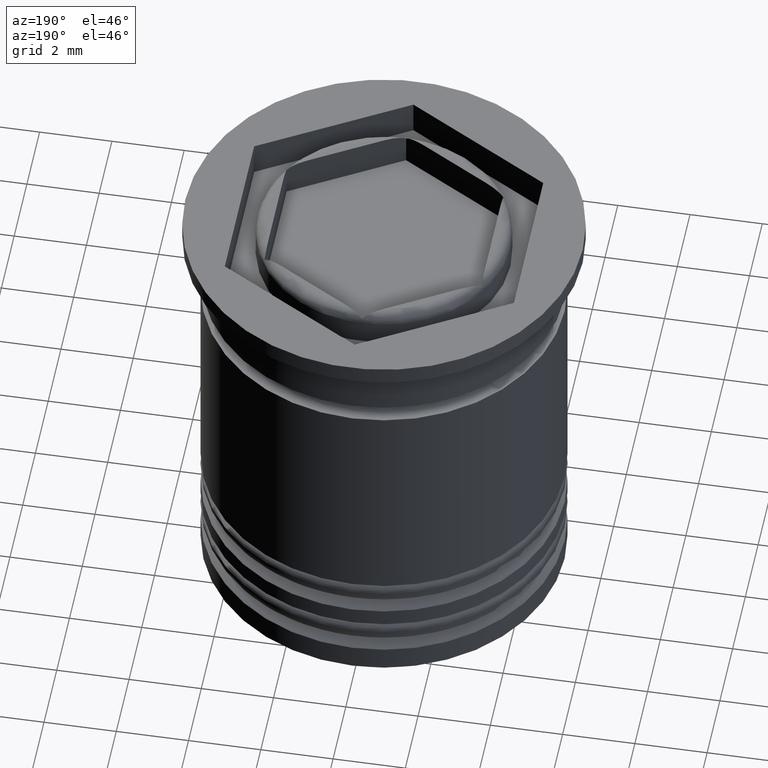
[diagram: clean part render]
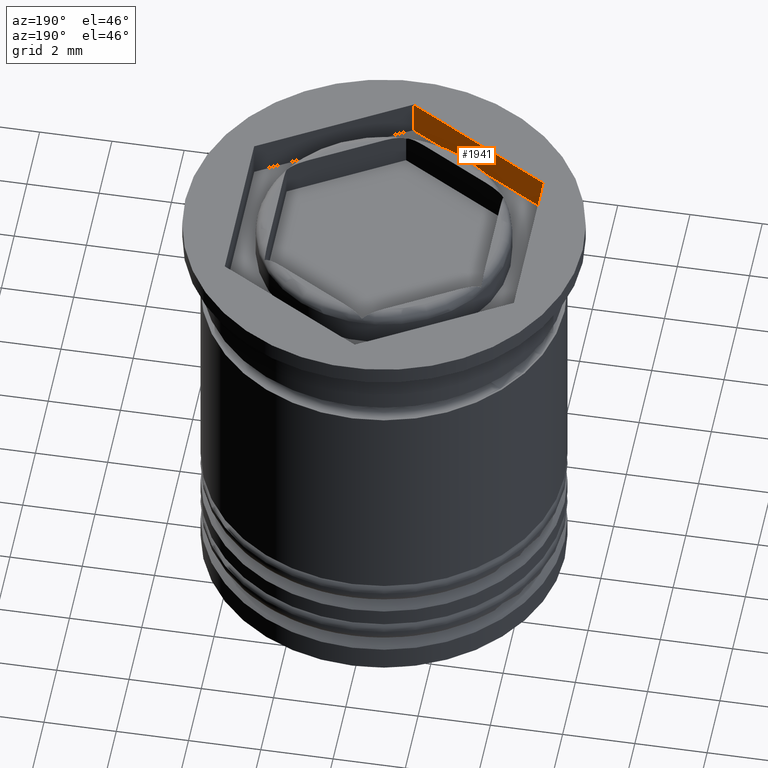
[diagram: same view with one face highlighted and labeled with its STEP entity id]
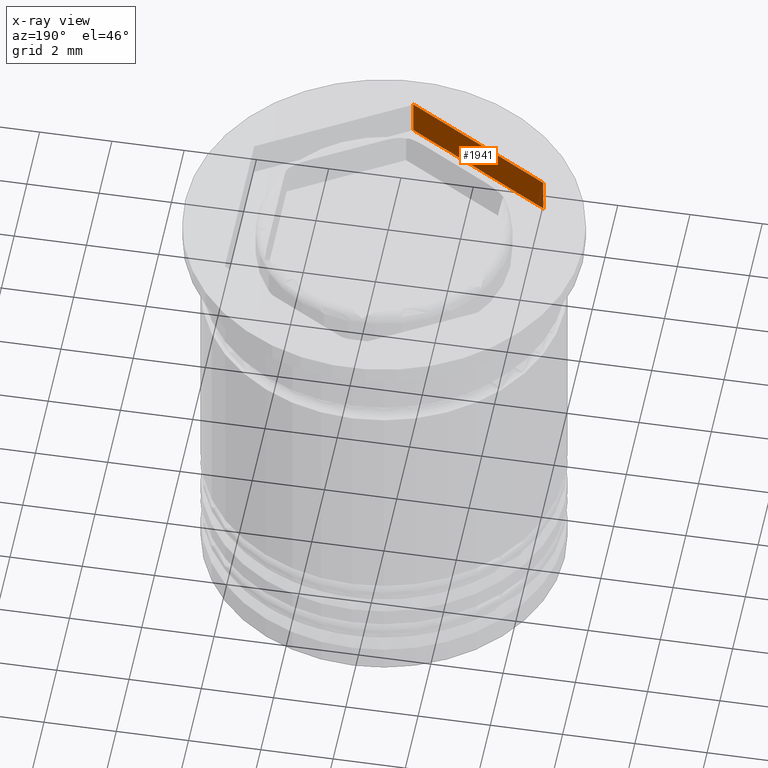
[diagram: x-ray of the same camera — body ghosted, the highlighted face saturated]
A machine part, auxiliary view. The second image highlights one B-rep face of the part: STEP entity #1941.
The next image is the same camera in x-ray: the body ghosted, the highlighted face saturated — about 0% of this face is hidden behind the body in this view.
In plain terms, the highlighted planar face has unit normal (-0.5, -0.866, 0).
Its self-contained STEP definition (entity closure, byte-faithful):
#110 = VERTEX_POINT ( 'NONE', #1684 ) ;
#266 = VECTOR ( 'NONE', #1612, 1000.000000000000114 ) ;
#296 = DIRECTION ( 'NONE',  ( -0.000000000000000000, -0.000000000000000000, 1.000000000000000000 ) ) ;
#344 = LINE ( 'NONE', #629, #266 ) ;
#370 = EDGE_CURVE ( 'NONE', #110, #703, #550, .T. ) ;
#410 = VERTEX_POINT ( 'NONE', #704 ) ;
#465 = LINE ( 'NONE', #1086, #1551 ) ;
#514 = PLANE ( 'NONE',  #1614 ) ;
#550 = LINE ( 'NONE', #1205, #1841 ) ;
#577 = CARTESIAN_POINT ( 'NONE',  ( -4.000000000000000000, -2.309401076758503368, 0.000000000000000000 ) ) ;
#629 = CARTESIAN_POINT ( 'NONE',  ( -4.000000000000000000, -2.309401076758503368, -1.000000000000000000 ) ) ;
#703 = VERTEX_POINT ( 'NONE', #577 ) ;
#704 = CARTESIAN_POINT ( 'NONE',  ( 8.334195073742550113E-16, -4.618802153517005848, -1.000000000000000000 ) ) ;
#738 = CARTESIAN_POINT ( 'NONE',  ( -4.000000000000000000, -2.309401076758503368, -1.000000000000000000 ) ) ;
#796 = VERTEX_POINT ( 'NONE', #1580 ) ;
#1003 = DIRECTION ( 'NONE',  ( -0.4999999999999997780, -0.8660254037844388186, 0.000000000000000000 ) ) ;
#1086 = CARTESIAN_POINT ( 'NONE',  ( 8.334195073742550113E-16, -4.618802153517005848, -1.000000000000000000 ) ) ;
#1164 = EDGE_CURVE ( 'NONE', #410, #796, #465, .T. ) ;
#1169 = DIRECTION ( 'NONE',  ( 0.8660254037844387076, -0.4999999999999997780, 0.000000000000000000 ) ) ;
#1182 = EDGE_LOOP ( 'NONE', ( #2050, #2016, #1656, #1525 ) ) ;
#1205 = CARTESIAN_POINT ( 'NONE',  ( -4.000000000000000000, -2.309401076758503368, -1.000000000000000000 ) ) ;
#1371 = EDGE_CURVE ( 'NONE', #703, #796, #2077, .T. ) ;
#1515 = DIRECTION ( 'NONE',  ( -0.000000000000000000, -0.000000000000000000, 1.000000000000000000 ) ) ;
#1525 = ORIENTED_EDGE ( 'NONE', *, *, #370, .T. ) ;
#1551 = VECTOR ( 'NONE', #296, 1000.000000000000000 ) ;
#1580 = CARTESIAN_POINT ( 'NONE',  ( 8.334195073742550113E-16, -4.618802153517005848, 0.000000000000000000 ) ) ;
#1603 = CARTESIAN_POINT ( 'NONE',  ( -4.000000000000000000, -2.309401076758503368, 0.000000000000000000 ) ) ;
#1612 = DIRECTION ( 'NONE',  ( 0.8660254037844387076, -0.4999999999999997780, 0.000000000000000000 ) ) ;
#1614 = AXIS2_PLACEMENT_3D ( 'NONE', #738, #1003, #1644 ) ;
#1644 = DIRECTION ( 'NONE',  ( 0.8660254037844387076, -0.4999999999999997224, 0.000000000000000000 ) ) ;
#1656 = ORIENTED_EDGE ( 'NONE', *, *, #1741, .F. ) ;
#1657 = FACE_OUTER_BOUND ( 'NONE', #1182, .T. ) ;
#1684 = CARTESIAN_POINT ( 'NONE',  ( -4.000000000000000000, -2.309401076758503368, -1.000000000000000000 ) ) ;
#1741 = EDGE_CURVE ( 'NONE', #110, #410, #344, .T. ) ;
#1841 = VECTOR ( 'NONE', #1515, 1000.000000000000000 ) ;
#1941 = ADVANCED_FACE ( 'NONE', ( #1657 ), #514, .F. ) ;
#2016 = ORIENTED_EDGE ( 'NONE', *, *, #1164, .F. ) ;
#2039 = VECTOR ( 'NONE', #1169, 1000.000000000000114 ) ;
#2050 = ORIENTED_EDGE ( 'NONE', *, *, #1371, .T. ) ;
#2077 = LINE ( 'NONE', #1603, #2039 ) ;